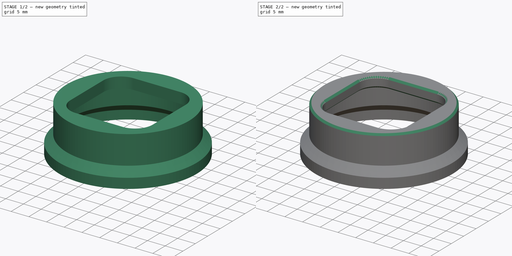
[diagram: build sequence overview — one tinted view per stage of 2, left to right]
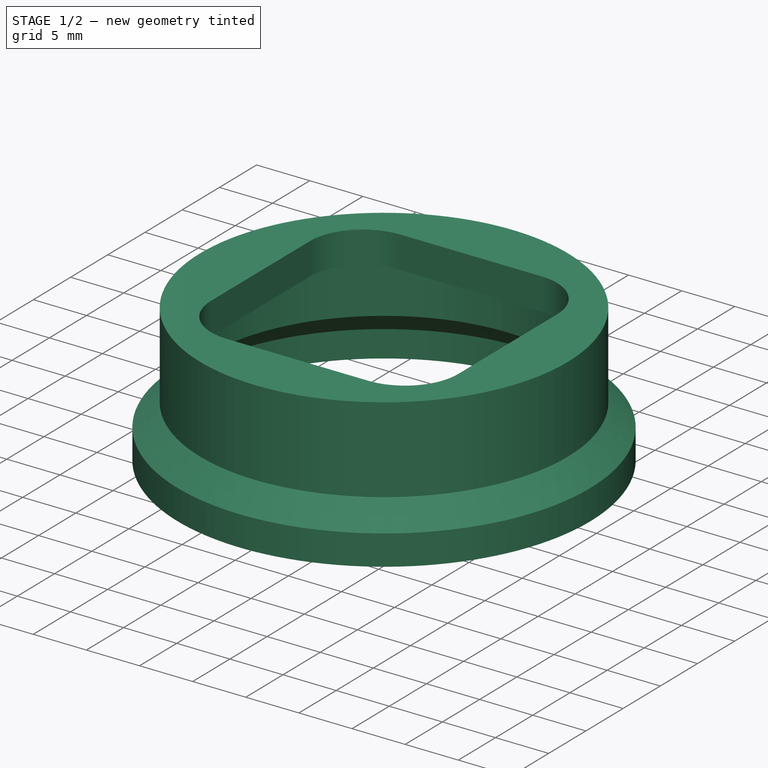
[diagram: stage 1 of 2 — iso view after this stage's code; geometry added in this stage tinted green]
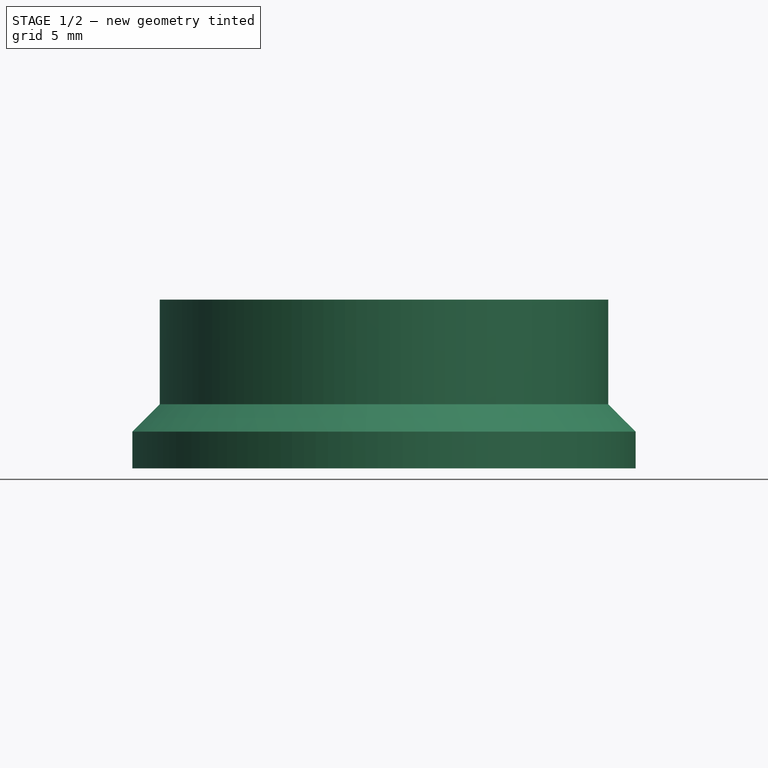
[diagram: stage 1 of 2 — front view after this stage's code; geometry added in this stage tinted green]
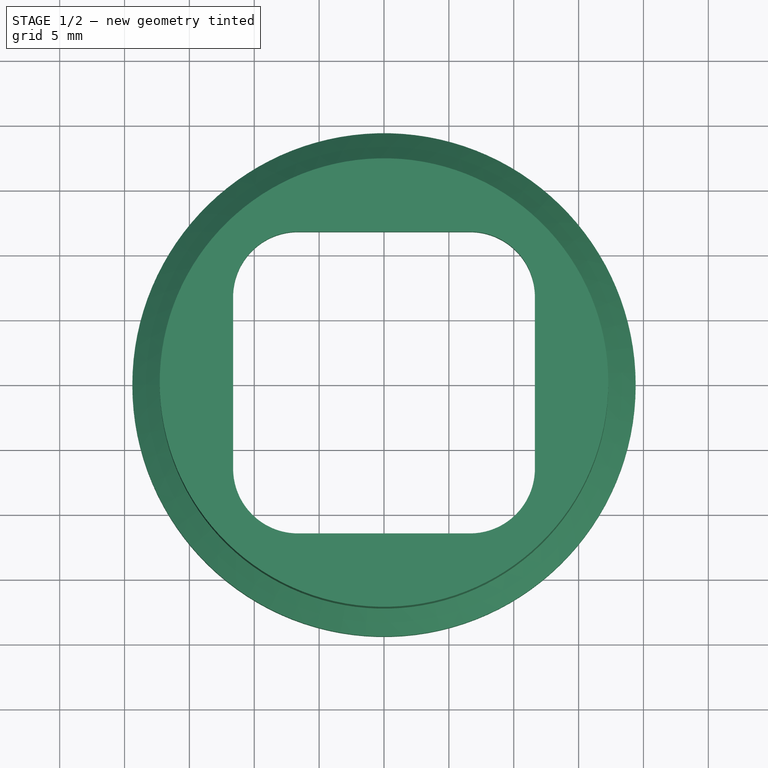
[diagram: stage 1 of 2 — top view after this stage's code; geometry added in this stage tinted green]
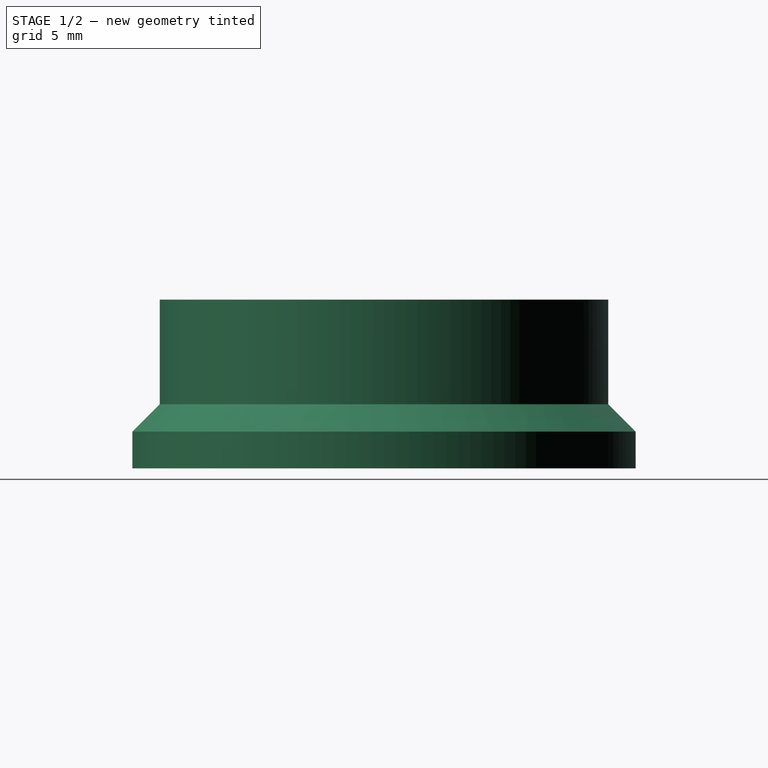
[diagram: stage 1 of 2 — right view after this stage's code; geometry added in this stage tinted green]
FCSTD DOCUMENT  (FreeCAD 0.20RUnknown)
Label: spin coater hub
License: All rights reserved
LicenseURL: http://en.wikipedia.org/wiki/All_rights_reserved
objects: Sketcher::SketchObject×2, PartDesign::Revolution×1, Spreadsheet::Sheet×1, PartDesign::Plane×1, PartDesign::Pad×1, PartDesign::Chamfer×1, PartDesign::Body×1
note: 10 computed .brp shape members not serialized (recipe doc carries the construction recipe); baked Part::Feature solids carry a one-line shape summary decoded from their .brp

FEATURE [Sketcher::SketchObject] Sketch
  FullyConstrained = true
  MapMode = 5
  Placement = pos=(0,0,0) rot=(1,0,0;1.5708rad)
  Support = -> [XZ_Plane]
  expr: Constraints[11] = <<hub_params>>.hub_wall_thickness
  expr: Constraints[12] = <<hub_params>>.hub_wall_thickness
  expr: Constraints[14] = <<hub_params>>.hub_inner_radius / 2 + <<hub_params>>.tolerance
  expr: Constraints[15] = <<hub_params>>.skirt_inner_diameter / 2 + 1.6
  expr: Constraints[18] = <<hub_params>>.hub_wall_thickness
  expr: Constraints[19] = 90 + 45
  expr: Constraints[20] = <<hub_params>>.fan_hub_inner_height
  sketch-geometry (8):
    g0: LineSegment StartX=-19.4 StartY=0 StartZ=0 EndX=-19.4 EndY=2.83137 EndZ=0
    g1: LineSegment StartX=-19.4 StartY=0 StartZ=0 EndX=-18.6 EndY=0 EndZ=0
    g2: LineSegment StartX=-18.6 StartY=0 StartZ=0 EndX=-18.6 EndY=2.5 EndZ=0
    g3: LineSegment StartX=-18.6 StartY=2.5 StartZ=0 EndX=-16.49 EndY=4.61 EndZ=0
    g4: LineSegment StartX=-19.4 StartY=2.83137 StartZ=0 EndX=-17.29 EndY=4.94137 EndZ=0
    g5: LineSegment StartX=-16.49 StartY=10 StartZ=0 EndX=-16.49 EndY=4.61 EndZ=0
    g6: LineSegment StartX=-17.29 StartY=10 StartZ=0 EndX=-17.29 EndY=4.94137 EndZ=0
    g7: LineSegment StartX=-17.29 StartY=10 StartZ=0 EndX=-16.49 EndY=10 EndZ=0
  constraints (24):
    c: PointOnObject(g0,g-1)
    c: Vertical(g0)
    c: Coincident(g1,g0)
    c: PointOnObject(g1,g-1)
    c: Coincident(g2,g1)
    c: Vertical(g2)
    c: Coincident(g3,g2)
    c: Coincident(g4,g0)
    c: Coincident(g5,g3)
    c: Vertical(g5)
    c: Parallel(g4,g3)
    c: DistanceX(g0,g1) = 0.8
    c: Distance(g0,g3) = 0.8
    c: DistanceY(g-1,g2) = 2.5
    c: DistanceX(g5,g-1) = 16.49
    c: DistanceX(g1,g-1) = 18.6
    c: Coincident(g6,g4)
    c: Vertical(g6)
    c: DistanceX(g6,g5) = 0.8
    c: Angle(g6,g4) = 2.35619
    c: DistanceY(g-1,g5) = 10
    c: Coincident(g7,g6)
    c: Coincident(g7,g5)
    c: Horizontal(g7)
FEATURE [PartDesign::Revolution] Revolution
  Angle = 360
  Axis = (0,-2e-16,1)
  Base = (0,0,0)
  Placement = pos=(0,0,0) rot=(1,0,0;1.5708rad)
  Profile = -> Sketch
  ReferenceAxis = -> Sketch [V_Axis]
FEATURE [Spreadsheet::Sheet] Spreadsheet  label="hub_params"
  cells = A2=hub_inner_diameter; B2(hub_inner_radius)=32.9; A3=skirt_inner_diameter; B3(skirt_inner_diameter)=34; A4=skirt_height; B4(skirt_height)=9; A5=fan_hub_inner_height; B5(fan_hub_inner_height)=10; A6=hub_wall_thickness; B6(hub_wall_thickness)=0.8; A7=sample_well_side_length; B7(sample_well_side_length)=30; A8=hub_to_chuck_interface_height; B8(hub_to_chuck_interface_height)=3; A10=TOLERANCE; B10(tolerance)=0.04
FEATURE [PartDesign::Plane] DatumPlane
  AttachmentOffset = pos=(0,0,10) rot=(0,0,1;0rad)
  Length = 60
  MapMode = 5
  Placement = pos=(0,0,10) rot=(0,0,1;0rad)
  ResizeMode = 0
  Support = -> [XY_Plane]
  Width = 60
  expr: .AttachmentOffset.Base.z = <<hub_params>>.fan_hub_inner_height
FEATURE [Sketcher::SketchObject] Sketch001
  FullyConstrained = true
  MapMode = 5
  Placement = pos=(0,0,10) rot=(0,0,1;0rad)
  Support = -> [DatumPlane]
  expr: Constraints[20] = <<hub_params>>.hub_inner_radius / 2 / sqrt(2)
  expr: Constraints[22] = <<hub_params>>.hub_inner_radius / 2 / sqrt(2)
  expr: Constraints[24] = <<hub_params>>.hub_inner_radius / 2 + <<hub_params>>.tolerance + 0.8
  sketch-geometry (11):
    g0: ArcOfCircle CenterX=-6.63191 CenterY=6.63191 CenterZ=0 NormalX=0 NormalY=0 NormalZ=1 AngleXU=0 Radius=5 StartAngle=1.5708 EndAngle=3.14159
    g1: LineSegment StartX=-6.63191 StartY=11.6319 StartZ=0 EndX=6.63191 EndY=11.6319 EndZ=0
    g2: ArcOfCircle CenterX=6.63191 CenterY=6.63191 CenterZ=0 NormalX=0 NormalY=0 NormalZ=1 AngleXU=0 Radius=5 StartAngle=4.4e-15 EndAngle=1.5708
    g3: LineSegment StartX=11.6319 StartY=6.63191 StartZ=0 EndX=11.6319 EndY=-6.63191 EndZ=0
    g4: ArcOfCircle CenterX=6.63191 CenterY=-6.63191 CenterZ=0 NormalX=0 NormalY=0 NormalZ=1 AngleXU=0 Radius=5 StartAngle=4.71239 EndAngle=6.28319
    g5: LineSegment StartX=6.63191 StartY=-11.6319 StartZ=0 EndX=-6.63191 EndY=-11.6319 EndZ=0
    g6: ArcOfCircle CenterX=-6.63191 CenterY=-6.63191 CenterZ=0 NormalX=0 NormalY=0 NormalZ=1 AngleXU=0 Radius=5 StartAngle=3.14159 EndAngle=4.71239
    g7: LineSegment StartX=-11.6319 StartY=-6.63191 StartZ=0 EndX=-11.6319 EndY=6.63191 EndZ=0
    g8: GeomPoint X=-11.6319 Y=11.6319 Z=0
    g9: GeomPoint X=11.6319 Y=-11.6319 Z=0
    g10: Circle CenterX=0 CenterY=0 CenterZ=0 NormalX=0 NormalY=0 NormalZ=1 AngleXU=0 Radius=17.29
  constraints (25):
    c: Tangent(g0,g1) = 1.5708
    c: Tangent(g1,g2) = 1.5708
    c: Tangent(g2,g3) = 1.5708
    c: Tangent(g3,g4) = 1.5708
    c: Tangent(g4,g5) = 1.5708
    c: Tangent(g5,g6) = 1.5708
    c: Tangent(g6,g7) = 1.5708
    c: Tangent(g7,g0) = 1.5708
    c: Horizontal(g1)
    c: Horizontal(g5)
    c: Vertical(g3)
    c: Vertical(g7)
    c: Equal(g0,g2)
    c: Equal(g2,g4)
    c: Equal(g4,g6)
    c: PointOnObject(g8,g1)
    c: PointOnObject(g8,g7)
    c: PointOnObject(g9,g3)
    c: PointOnObject(g9,g5)
    c: Symmetric(g0,g3,g-1)
    c: DistanceX(g0,g-1) = 11.6319
    c: Radius(g0) = 5
    c: DistanceY(g-1,g0) = 11.6319
    c: Coincident(g10,g-1)
    c: Radius(g10) = 17.29
FEATURE [PartDesign::Pad] Pad
  BaseFeature = -> Revolution
  Direction = (0,0,1)
  Length = 3
  Length2 = 10
  Placement = pos=(0,0,0) rot=(1,0,0;1.5708rad)
  Profile = -> Sketch001
  ReferenceAxis = -> Sketch001 [N_Axis]
  Refine = true
  Type = 0
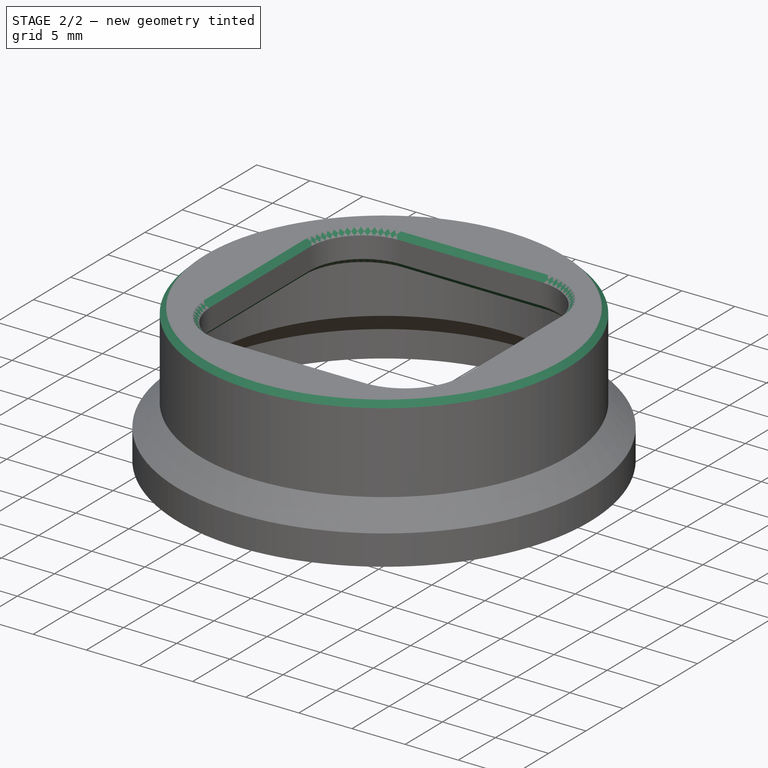
[diagram: stage 2 of 2 — iso view after this stage's code; geometry added in this stage tinted green]
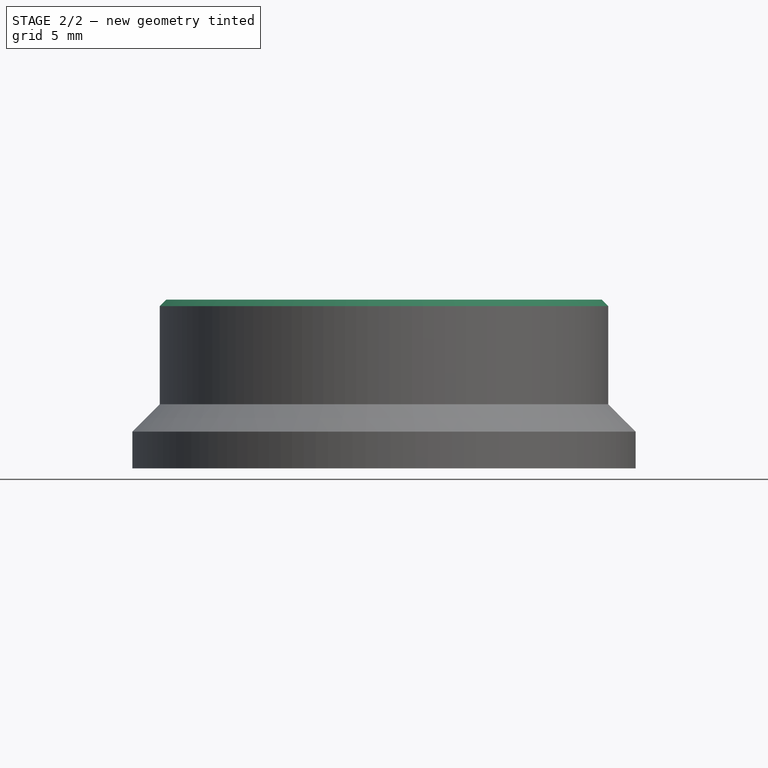
[diagram: stage 2 of 2 — front view after this stage's code; geometry added in this stage tinted green]
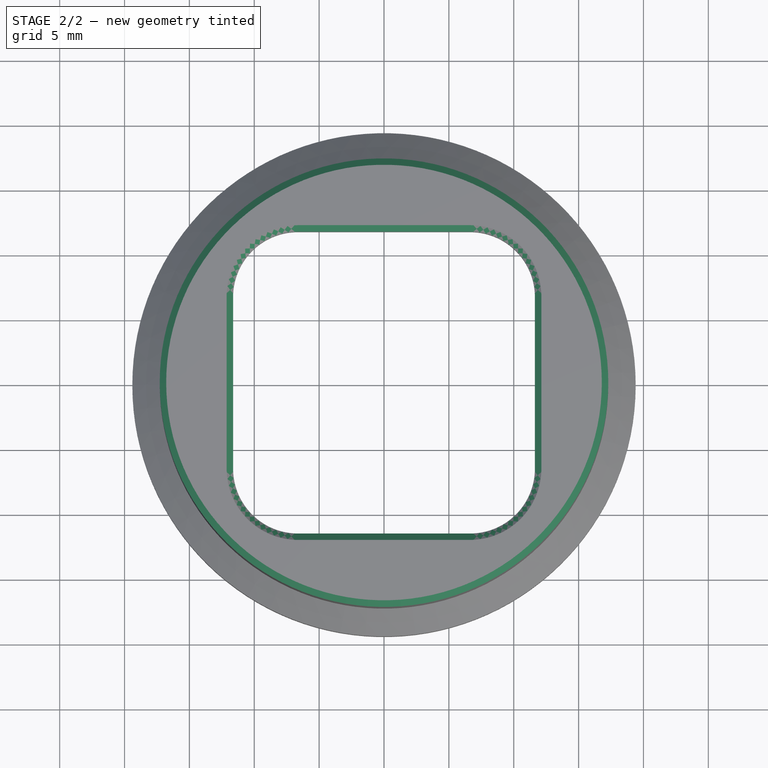
[diagram: stage 2 of 2 — top view after this stage's code; geometry added in this stage tinted green]
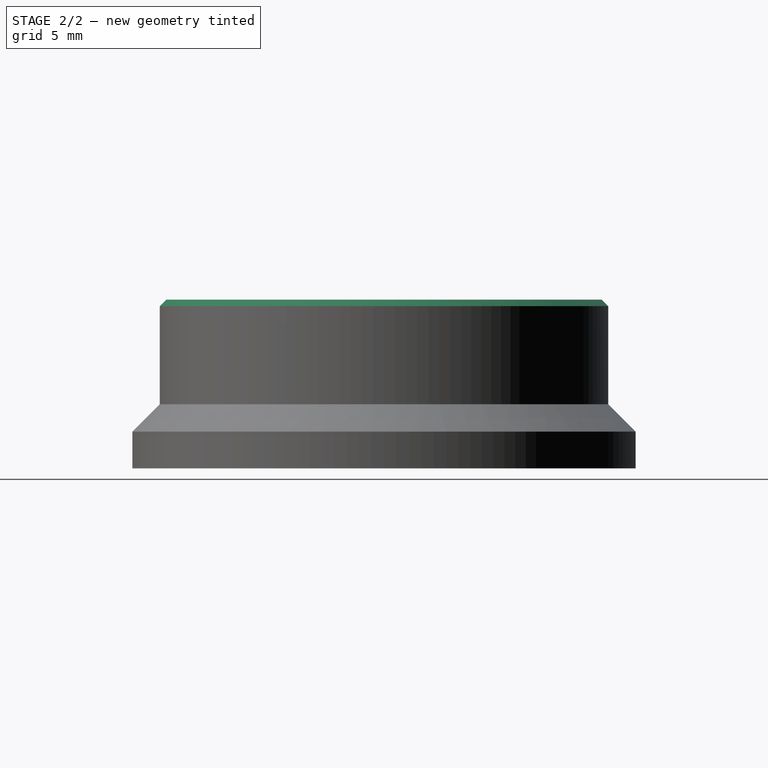
[diagram: stage 2 of 2 — right view after this stage's code; geometry added in this stage tinted green]
FEATURE [PartDesign::Chamfer] Chamfer
  Angle = 45
  Base = -> Pad [Edge19,Edge20,Edge17,Edge15,Edge18,Edge16,Edge14,Edge13,Edge28,Edge29,Edge30,Edge31,Edge32,Edge23,Edge26,Edge27,Edge24,Edge25]
  BaseFeature = -> Pad
  ChamferType = 0
  FlipDirection = false
  Placement = pos=(0,0,0) rot=(1,0,0;1.5708rad)
  Size = 0.5
  Size2 = 1
  SupportTransform = false
  UseAllEdges = false
FEATURE [PartDesign::Body] Body  label="Spin coater hub"
  Group = -> [Sketch,Revolution,DatumPlane,Sketch001,Pad,Chamfer]
  Origin = -> Origin
  Tip = -> Chamfer
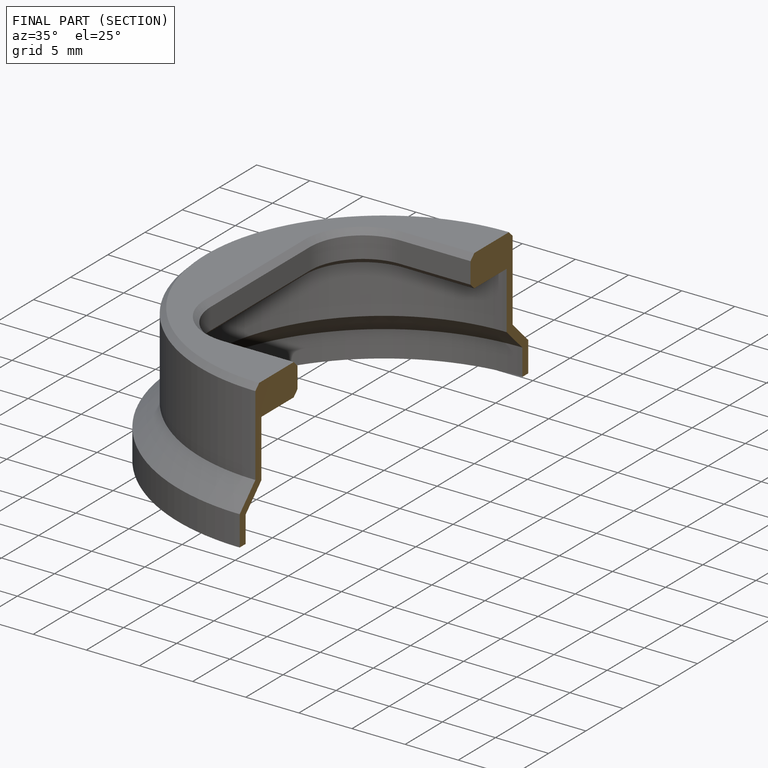
[diagram: finished part — half-section view (interior)]
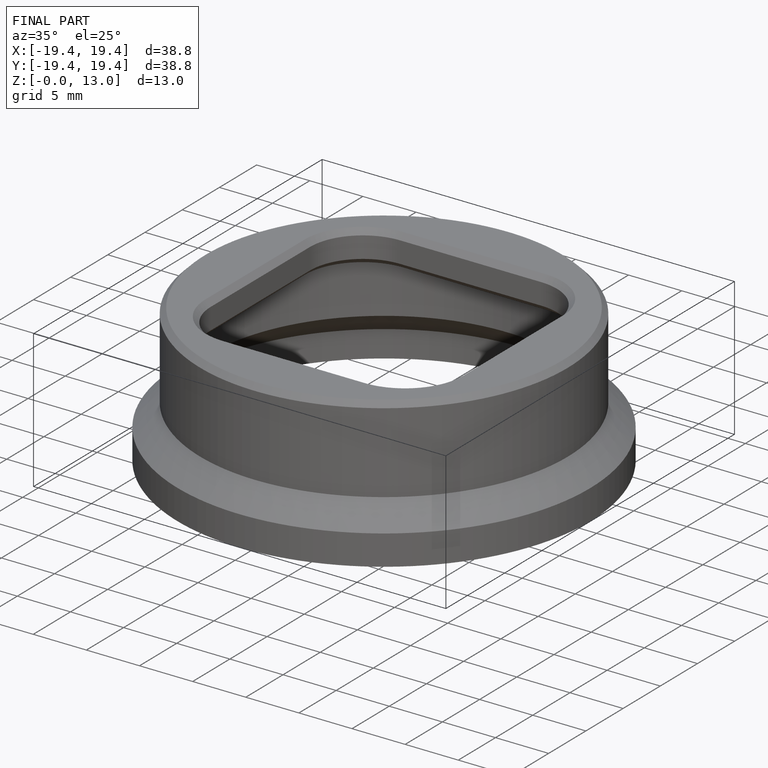
[diagram: finished part — iso view with bounding-box wireframe]
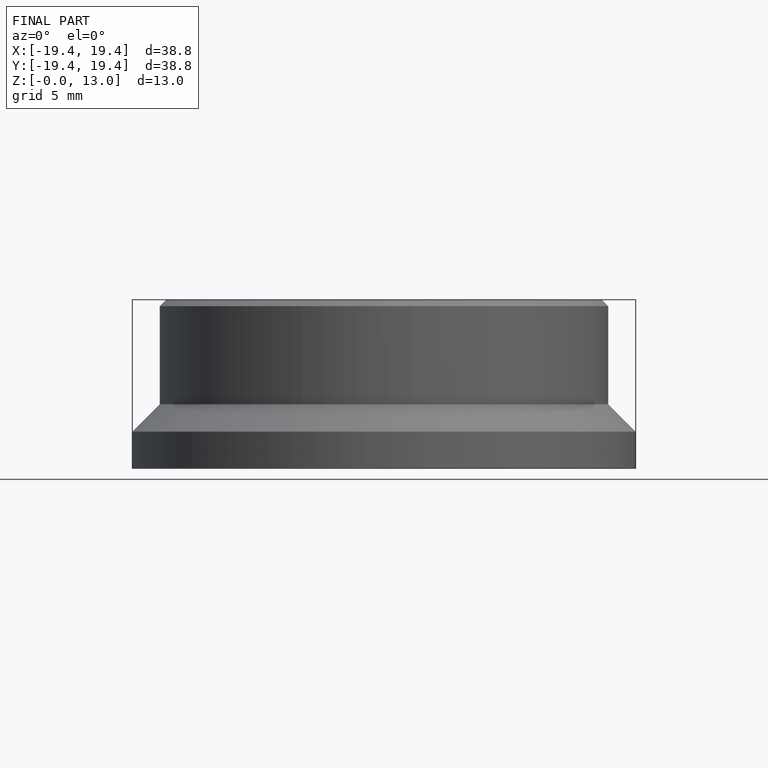
[diagram: finished part — front view with bounding-box wireframe]
